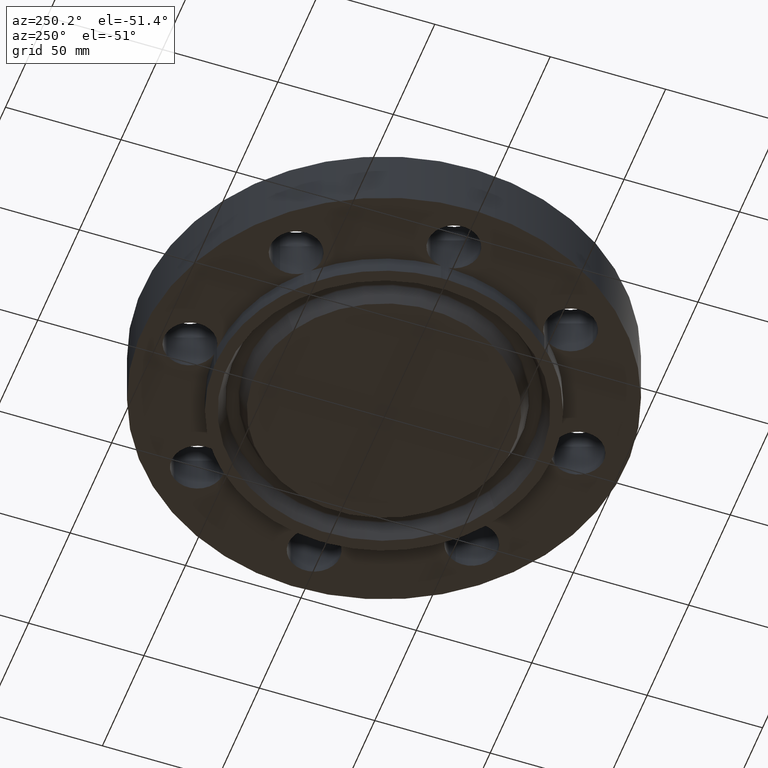
[diagram: clean part render]
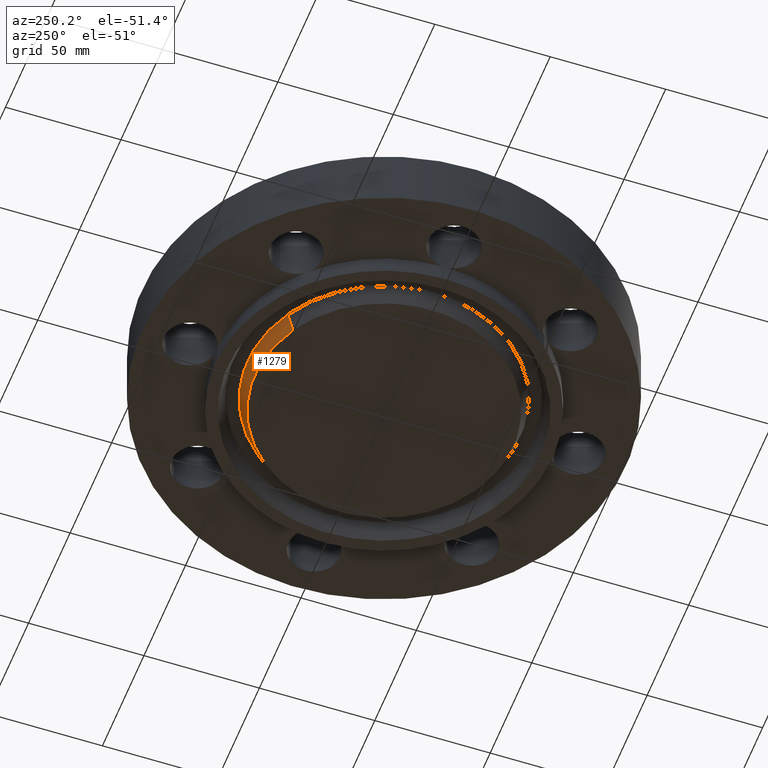
[diagram: same view with one face highlighted and labeled with its STEP entity id]
A machine part, auxiliary view. The second image highlights one B-rep face of the part: STEP entity #1279.
In plain terms, the highlighted conical surface has half-angle 23 deg.
Its self-contained STEP definition (entity closure, byte-faithful):
#42=AXIS2_PLACEMENT_3D('Circle Axis2P3D',#40,#41,$) ;
#1229=AXIS2_PLACEMENT_3D('Circle Axis2P3D',#1227,#1228,$) ;
#1261=AXIS2_PLACEMENT_3D('Cone Axis2P3D',#1258,#1259,#1260) ;
#40=CARTESIAN_POINT('Axis2P3D Location',(0.,6.99353086378E-017,-0.312500000001)) ;
#44=CARTESIAN_POINT('Vertex',(-1.0562224041,1.93340214211,-0.312500000001)) ;
#46=CARTESIAN_POINT('Vertex',(1.0562224041,-1.93340214211,-0.312500000001)) ;
#1224=CARTESIAN_POINT('Vertex',(1.11593657906,-2.04270820617,-0.0190701156784)) ;
#1227=CARTESIAN_POINT('Axis2P3D Location',(0.,0.,-0.0190701156784)) ;
#1231=CARTESIAN_POINT('Vertex',(-1.11593657906,2.04270820617,-0.0190701156784)) ;
#1258=CARTESIAN_POINT('Axis2P3D Location',(0.,0.,-0.372500000001)) ;
#1263=CARTESIAN_POINT('Line Origine',(-1.08607949158,1.98805517414,-0.16578505784)) ;
#1268=CARTESIAN_POINT('Line Origine',(1.08607949158,-1.98805517414,-0.16578505784)) ;
#41=DIRECTION('Axis2P3D Direction',(0.,0.,-0.0393700787402)) ;
#1228=DIRECTION('Axis2P3D Direction',(0.,0.,0.0393700787402)) ;
#1259=DIRECTION('Axis2P3D Direction',(0.,0.,0.0393700787402)) ;
#1260=DIRECTION('Axis2P3D XDirection',(-0.0188750212049,0.0345504945626,0.)) ;
#1264=DIRECTION('Vector Direction',(-0.00737505833565,0.0134999537303,0.0362403485611)) ;
#1269=DIRECTION('Vector Direction',(0.00737505833565,-0.0134999537303,0.0362403485611)) ;
#1265=VECTOR('Line Direction',#1264,0.0393700787402) ;
#1270=VECTOR('Line Direction',#1269,0.0393700787402) ;
#1274=ORIENTED_EDGE('',*,*,#1267,.F.) ;
#1275=ORIENTED_EDGE('',*,*,#1233,.F.) ;
#1276=ORIENTED_EDGE('',*,*,#1272,.T.) ;
#1277=ORIENTED_EDGE('',*,*,#48,.F.) ;
#1279=ADVANCED_FACE('PartBody',(#1278),#1262,.T.) ;
#43=CIRCLE('generated circle',#42,2.20310000001) ;
#1230=CIRCLE('generated circle',#1229,2.32765359623) ;
#1262=CONICAL_SURFACE('Cone',#1261,2.17763151104,0.401425727959) ;
#48=EDGE_CURVE('',#45,#47,#43,.T.) ;
#1233=EDGE_CURVE('',#1225,#1232,#1230,.T.) ;
#1267=EDGE_CURVE('',#1232,#45,#1266,.F.) ;
#1272=EDGE_CURVE('',#1225,#47,#1271,.F.) ;
#1273=EDGE_LOOP('',(#1274,#1275,#1276,#1277)) ;
#1278=FACE_OUTER_BOUND('',#1273,.T.) ;
#1266=LINE('Line',#1263,#1265) ;
#1271=LINE('Line',#1268,#1270) ;
#45=VERTEX_POINT('',#44) ;
#47=VERTEX_POINT('',#46) ;
#1225=VERTEX_POINT('',#1224) ;
#1232=VERTEX_POINT('',#1231) ;